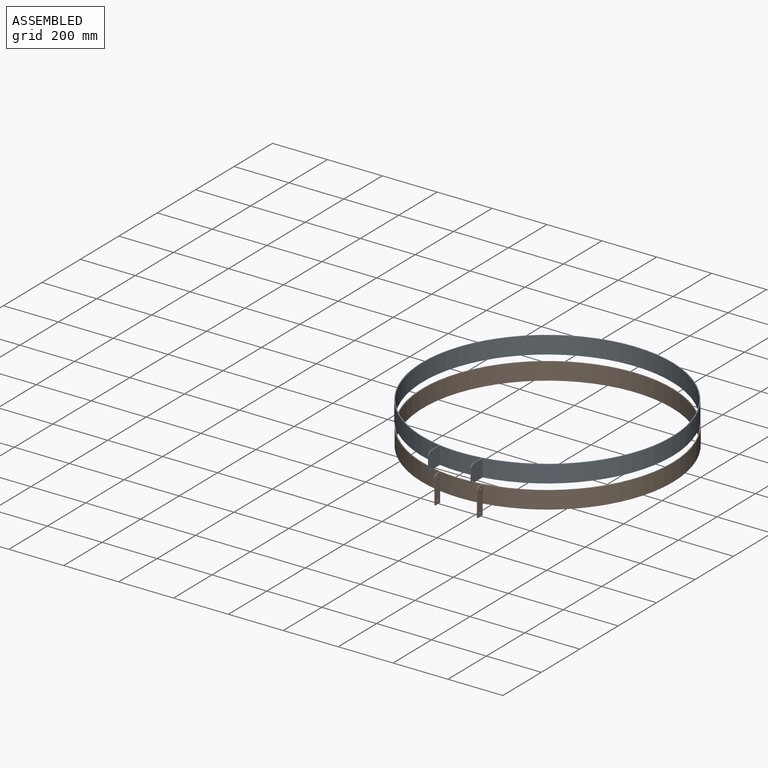
[diagram: assembled view]
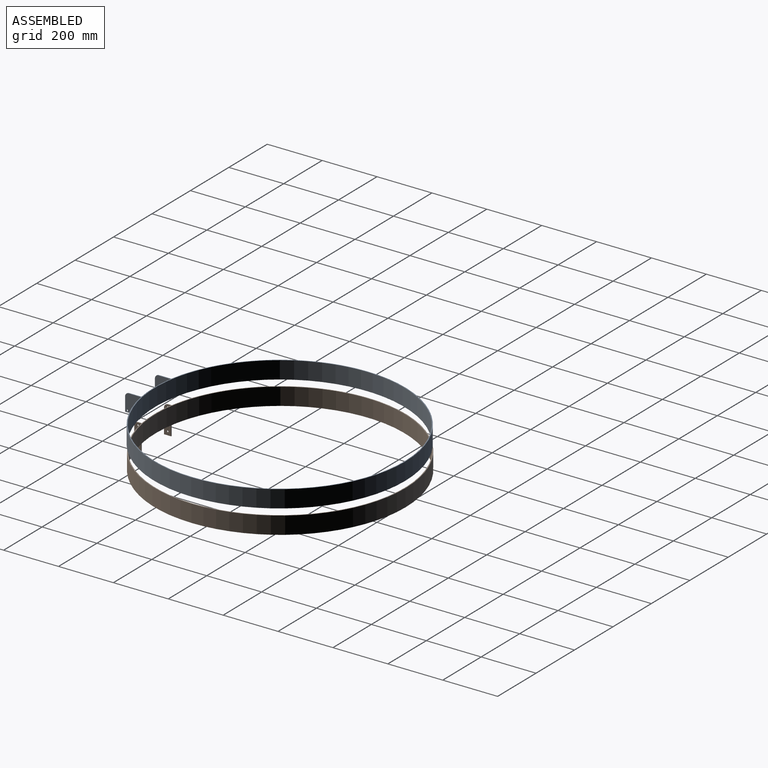
[diagram: assembled view, second angle]
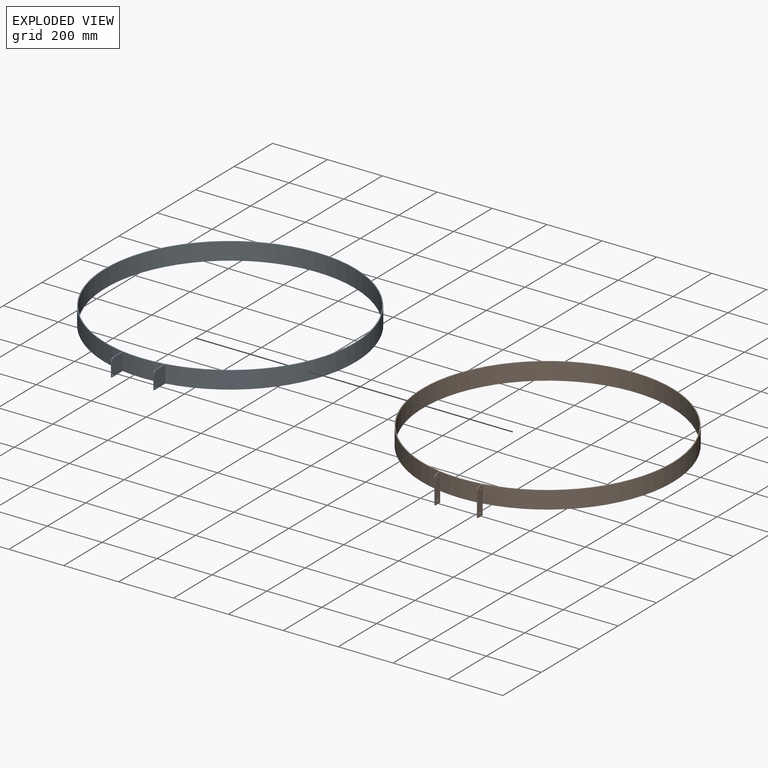
[diagram: exploded view]
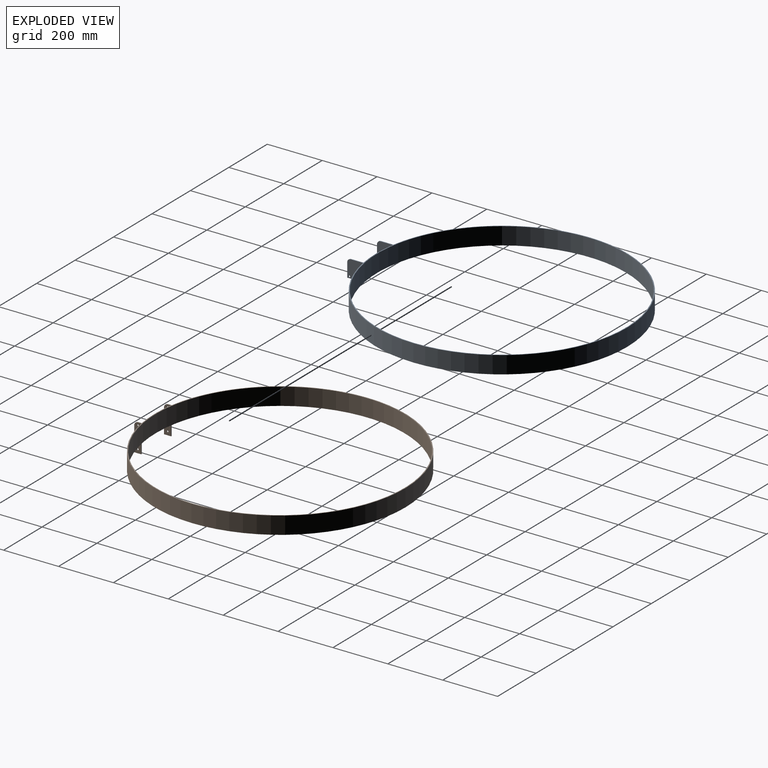
[diagram: exploded view, second angle]
ASSEMBLY  parts=2 mates=2
PART A: 15 faces, bbox 914.4x965.2x63.5 mm
  f0: cylinder r=457.2mm len=151.87mm, axis (0,0,-1), area 9688.6mm2, adj f3,f4,f6,f9
  f1: cylinder r=454.03mm len=908.05mm, axis (0,0,-1), area 181147.9mm2, adj f3,f4
  f2: cylinder r=457.2mm len=914.4mm, axis (0,0,-1), area 172316.9mm2, adj f3,f4,f5,f8
  f3: plane 952.5x914.4mm, normal (0,0,1), area 9373mm2, adj f0,f1,f2,f5,f6,f8,f9,f13
  f4: plane 965.2x914.4mm, normal (0,0,-1), area 9453.7mm2, adj f0,f1,f2,f5,f6,f7,f8,f9
  f5: plane 63.5x57.7mm, normal (-1,0,0), area 3597.4mm2, adj f2,f3,f4,f7,f12,f14
  f6: plane 63.5x57.15mm, normal (1,0,0), area 3562.7mm2, adj f0,f3,f4,f7,f12,f14
  f7: plane 50.8x3.18mm, normal (0,-1,0), area 161.3mm2, adj f4,f5,f6,f14
  f8: plane 63.5x57.7mm, normal (1,0,0), area 3597.4mm2, adj f2,f3,f4,f10,f11,f13
  f9: plane 63.5x57.15mm, normal (-1,0,0), area 3562.7mm2, adj f0,f3,f4,f10,f11,f13
  f10: plane 50.8x3.18mm, normal (0,-1,0), area 161.3mm2, adj f4,f8,f9,f13
  f11: cylinder r=3.17mm len=6.35mm, axis (-1,0,0), area 63.3mm2, adj f8,f9
  f12: cylinder r=3.17mm len=6.35mm, axis (-1,0,0), area 63.3mm2, adj f5,f6
  f13: cylinder r=12.7mm len=12.7mm, axis (1,0,0), area 63.3mm2, adj f3,f8,f9,f10
  f14: cylinder r=12.7mm len=12.7mm, axis (1,0,0), area 63.3mm2, adj f3,f5,f6,f7
PART B: 21 faces, bbox 914.4x933.5x101.6 mm
  f0: plane 914.4x914.4mm, normal (0,0,-1), area 9090.8mm2, adj f1,f2,f3,f5,f8,f11,f13
  f1: cylinder r=457.2mm len=151.87mm, axis (0,0,-1), area 9688.6mm2, adj f0,f4,f6,f9
  f2: cylinder r=454.03mm len=908.05mm, axis (0,0,-1), area 181147.9mm2, adj f0,f4
  f3: cylinder r=457.2mm len=914.4mm, axis (0,0,-1), area 172316.9mm2, adj f0,f4,f5,f8
  f4: plane 920.75x914.4mm, normal (0,0,1), area 9171.4mm2, adj f1,f2,f3,f5,f6,f8,f9,f19
  f5: plane 101.6x25.95mm, normal (-1,0,0), area 2517.4mm2, adj f0,f3,f4,f7,f11,f12,f17,f18
  f6: plane 101.6x25.4mm, normal (1,0,0), area 2482.7mm2, adj f1,f4,f7,f11,f12,f17,f18,f20
  f7: plane 88.9x3.18mm, normal (0,-1,0), area 282.3mm2, adj f5,f6,f12,f20
  f8: plane 101.6x25.95mm, normal (1,0,0), area 2517.4mm2, adj f0,f3,f4,f10,f13,f14,f15,f16
  f9: plane 101.6x25.4mm, normal (-1,0,0), area 2482.7mm2, adj f1,f4,f10,f13,f14,f15,f16,f19
  f10: plane 88.9x3.18mm, normal (0,-1,0), area 282.3mm2, adj f8,f9,f14,f19
  f11: plane 38.1x3.18mm, normal (0,1,0), area 121mm2, adj f0,f5,f6,f12
  f12: plane 25.4x3.18mm, normal (0,0,-1), area 80.6mm2, adj f5,f6,f7,f11
  f13: plane 38.1x3.18mm, normal (0,1,0), area 121mm2, adj f0,f8,f9,f14
  f14: plane 25.4x3.18mm, normal (0,0,-1), area 80.6mm2, adj f8,f9,f10,f13
  f15: cylinder r=3.17mm len=6.35mm, axis (-1,0,0), area 63.3mm2, adj f8,f9
  f16: cylinder r=3.17mm len=6.35mm, axis (-1,0,0), area 63.3mm2, adj f8,f9
  f17: cylinder r=3.17mm len=6.35mm, axis (-1,0,0), area 63.3mm2, adj f5,f6
  f18: cylinder r=3.17mm len=6.35mm, axis (-1,0,0), area 63.3mm2, adj f5,f6
  f19: cylinder r=12.7mm len=12.7mm, axis (1,0,0), area 63.3mm2, adj f4,f8,f9,f10
  f20: cylinder r=12.7mm len=12.7mm, axis (1,0,0), area 63.3mm2, adj f4,f5,f6,f7
PLACE A t=(-33.82,22.34,81.8)mm
PLACE B t=(-33.82,23.8,-4.82)mm
MATE planar A.f6 <-> B.f6  axis (1,0,0) through (-109.75,-456.65,113.5)mm
MATE parallel B.f6 <-> A.f6  axis (1,0,0) through (-109.75,-427.05,-4.82)mm
